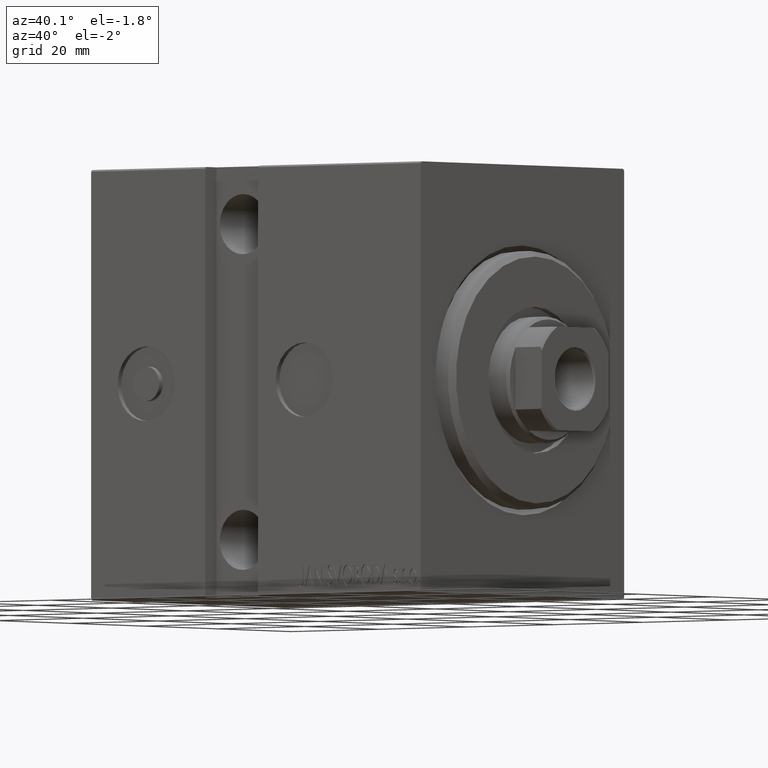
[diagram: clean part render]
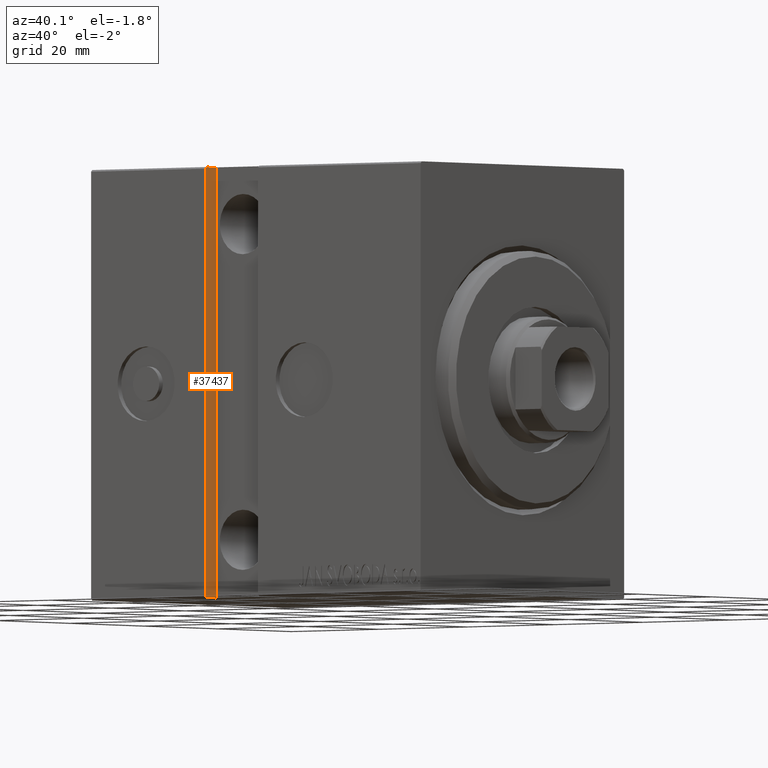
[diagram: same view with one face highlighted and labeled with its STEP entity id]
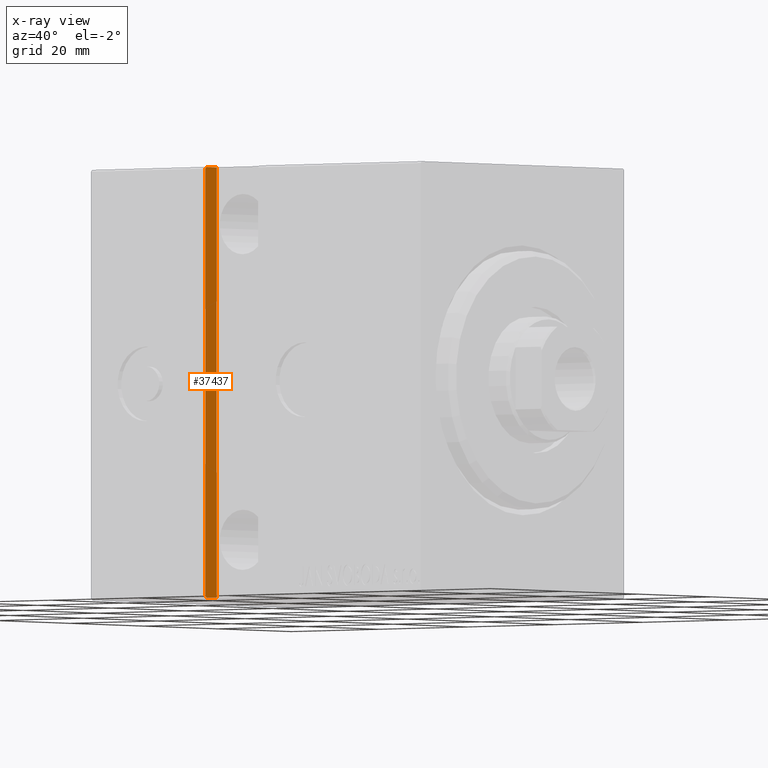
[diagram: x-ray of the same camera — body ghosted, the highlighted face saturated]
A machine part, auxiliary view. The second image highlights one B-rep face of the part: STEP entity #37437.
The next image is the same camera in x-ray: the body ghosted, the highlighted face saturated — about 0% of this face is hidden behind the body in this view.
In plain terms, the highlighted planar face has unit normal (-1, 0, -0).
Its self-contained STEP definition (entity closure, byte-faithful):
#168 = ORIENTED_EDGE ( 'NONE', *, *, #13089, .T. ) ;
#5531 = CARTESIAN_POINT ( 'NONE',  ( 49.00000000000000000, 24.50000000000000000, 37.49999999999993605 ) ) ;
#6112 = EDGE_CURVE ( 'NONE', #33038, #7034, #11870, .T. ) ;
#7034 = VERTEX_POINT ( 'NONE', #25511 ) ;
#7233 = ORIENTED_EDGE ( 'NONE', *, *, #15091, .T. ) ;
#7413 = EDGE_CURVE ( 'NONE', #13332, #11315, #26315, .T. ) ;
#7493 = EDGE_CURVE ( 'NONE', #13601, #33038, #25001, .T. ) ;
#8013 = DIRECTION ( 'NONE',  ( -9.251858538542978977E-17, -0.000000000000000000, -1.000000000000000000 ) ) ;
#8117 = LINE ( 'NONE', #5531, #14090 ) ;
#8215 = DIRECTION ( 'NONE',  ( -0.000000000000000000, 1.000000000000000000, -0.000000000000000000 ) ) ;
#8592 = ORIENTED_EDGE ( 'NONE', *, *, #7493, .F. ) ;
#8624 = PLANE ( 'NONE',  #38145 ) ;
#10178 = ORIENTED_EDGE ( 'NONE', *, *, #39357, .T. ) ;
#11315 = VERTEX_POINT ( 'NONE', #19986 ) ;
#11851 = ORIENTED_EDGE ( 'NONE', *, *, #6112, .F. ) ;
#11870 = LINE ( 'NONE', #34013, #31058 ) ;
#12552 = ORIENTED_EDGE ( 'NONE', *, *, #7413, .T. ) ;
#13089 = EDGE_CURVE ( 'NONE', #11315, #41512, #22551, .T. ) ;
#13332 = VERTEX_POINT ( 'NONE', #15777 ) ;
#13601 = VERTEX_POINT ( 'NONE', #25411 ) ;
#14090 = VECTOR ( 'NONE', #15202, 1000.000000000000000 ) ;
#15091 = EDGE_CURVE ( 'NONE', #13601, #13332, #8117, .T. ) ;
#15202 = DIRECTION ( 'NONE',  ( -0.000000000000000000, 1.000000000000000000, -0.000000000000000000 ) ) ;
#15777 = CARTESIAN_POINT ( 'NONE',  ( 49.00000000000000000, 27.20000000000000284, 37.49999999999993605 ) ) ;
#15797 = CARTESIAN_POINT ( 'NONE',  ( 48.99999999999999289, 27.50000000000000355, -37.19999999999999574 ) ) ;
#16085 = CARTESIAN_POINT ( 'NONE',  ( 48.99999999999999289, 27.50000000000000000, -37.50000000000000711 ) ) ;
#19152 = CARTESIAN_POINT ( 'NONE',  ( 48.99999999999999289, 24.50000000000000000, -37.50000000000000711 ) ) ;
#19986 = CARTESIAN_POINT ( 'NONE',  ( 49.00000000000000000, 27.50000000000000000, 37.20000000000000995 ) ) ;
#21744 = DIRECTION ( 'NONE',  ( 1.000000000000000000, 0.000000000000000000, -9.251858538542978977E-17 ) ) ;
#22158 = VECTOR ( 'NONE', #8013, 1000.000000000000000 ) ;
#22551 = LINE ( 'NONE', #16085, #37383 ) ;
#23297 = CARTESIAN_POINT ( 'NONE',  ( 49.00000000000000000, 27.20000000000000284, 37.50000000000000711 ) ) ;
#24865 = EDGE_LOOP ( 'NONE', ( #168, #10178, #11851, #8592, #7233, #12552 ) ) ;
#25001 = LINE ( 'NONE', #37453, #22158 ) ;
#25411 = CARTESIAN_POINT ( 'NONE',  ( 49.00000000000000000, 24.50000000000000000, 37.49999999999993605 ) ) ;
#25511 = CARTESIAN_POINT ( 'NONE',  ( 48.99999999999999289, 27.19999999999999929, -37.50000000000000711 ) ) ;
#26315 = LINE ( 'NONE', #23297, #29709 ) ;
#26328 = LINE ( 'NONE', #15797, #42322 ) ;
#29456 = CARTESIAN_POINT ( 'NONE',  ( 49.00000000000000000, 24.50000000000000355, -37.50000000000000711 ) ) ;
#29709 = VECTOR ( 'NONE', #36198, 1000.000000000000114 ) ;
#31058 = VECTOR ( 'NONE', #8215, 1000.000000000000000 ) ;
#33038 = VERTEX_POINT ( 'NONE', #29456 ) ;
#34013 = CARTESIAN_POINT ( 'NONE',  ( 48.99999999999999289, 24.50000000000000000, -37.50000000000000711 ) ) ;
#34855 = DIRECTION ( 'NONE',  ( -9.251858538542978977E-17, 0.000000000000000000, -1.000000000000000000 ) ) ;
#35578 = DIRECTION ( 'NONE',  ( -6.542051911182440696E-17, -0.7071067811865434649, -0.7071067811865516806 ) ) ;
#35655 = DIRECTION ( 'NONE',  ( -9.251858538542978977E-17, -0.000000000000000000, -1.000000000000000000 ) ) ;
#36198 = DIRECTION ( 'NONE',  ( -6.542051911182402486E-17, 0.7071067811865474617, -0.7071067811865474617 ) ) ;
#37383 = VECTOR ( 'NONE', #35655, 1000.000000000000000 ) ;
#37437 = ADVANCED_FACE ( 'NONE', ( #41930 ), #8624, .F. ) ;
#37453 = CARTESIAN_POINT ( 'NONE',  ( 48.99999999999999289, 24.50000000000000000, -37.50000000000000711 ) ) ;
#38145 = AXIS2_PLACEMENT_3D ( 'NONE', #19152, #21744, #34855 ) ;
#39357 = EDGE_CURVE ( 'NONE', #41512, #7034, #26328, .T. ) ;
#41512 = VERTEX_POINT ( 'NONE', #42037 ) ;
#41930 = FACE_OUTER_BOUND ( 'NONE', #24865, .T. ) ;
#42037 = CARTESIAN_POINT ( 'NONE',  ( 48.99999999999999289, 27.50000000000000000, -37.19999999999999574 ) ) ;
#42322 = VECTOR ( 'NONE', #35578, 1000.000000000000000 ) ;